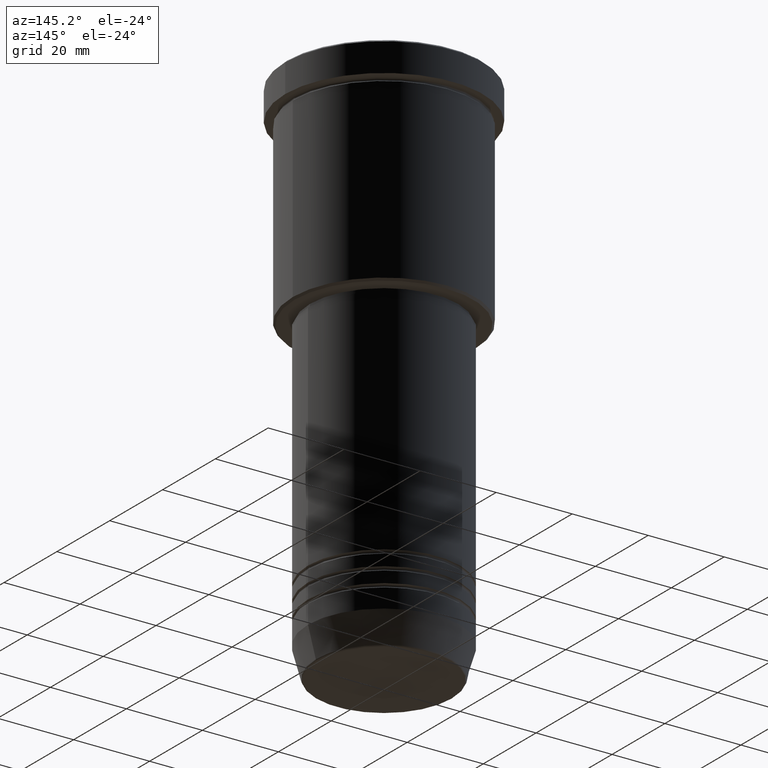
[diagram: clean part render]
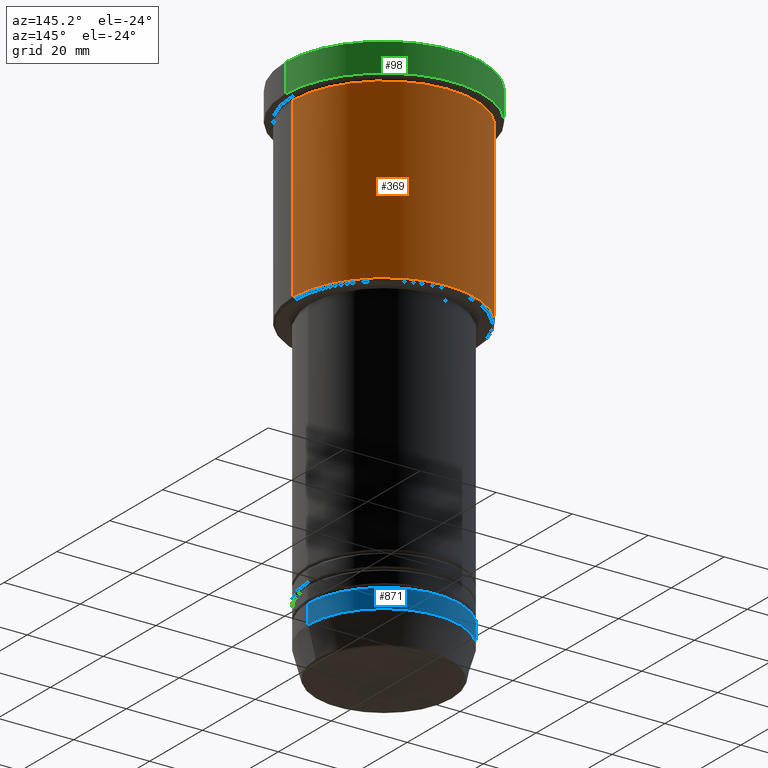
[diagram: same view with three faces highlighted in distinct colors, each labeled with its STEP entity id]
A machine part, auxiliary view with three faces highlighted in distinct colors.
Their STEP definitions:

[orange] entity #369 — the highlighted cylindrical surface (partial cylindrical patch) has radius 24 mm, axis along (-0, -0, 1).
#10 = ORIENTED_EDGE ( 'NONE', *, *, #63, .F. ) ;
#29 = CARTESIAN_POINT ( 'NONE',  ( 24.00000000000000000, 0.000000000000000000, -8.999999999999994671 ) ) ;
#59 = EDGE_LOOP ( 'NONE', ( #241, #410, #10, #599 ) ) ;
#63 = EDGE_CURVE ( 'NONE', #504, #910, #1088, .T. ) ;
#73 = AXIS2_PLACEMENT_3D ( 'NONE', #471, #839, #575 ) ;
#81 = DIRECTION ( 'NONE',  ( 1.000000000000000000, 0.000000000000000000, 0.000000000000000000 ) ) ;
#93 = DIRECTION ( 'NONE',  ( -0.000000000000000000, -0.000000000000000000, 1.000000000000000000 ) ) ;
#96 = DIRECTION ( 'NONE',  ( -0.000000000000000000, -0.000000000000000000, 1.000000000000000000 ) ) ;
#104 = VECTOR ( 'NONE', #153, 1000.000000000000000 ) ;
#128 = CIRCLE ( 'NONE', #73, 24.00000000000000000 ) ;
#153 = DIRECTION ( 'NONE',  ( -0.000000000000000000, -0.000000000000000000, 1.000000000000000000 ) ) ;
#180 = CYLINDRICAL_SURFACE ( 'NONE', #342, 24.00000000000000000 ) ;
#221 = CARTESIAN_POINT ( 'NONE',  ( -24.00000000000000000, 2.939152317953647894E-15, -55.49999999999999289 ) ) ;
#239 = EDGE_CURVE ( 'NONE', #365, #504, #264, .T. ) ;
#241 = ORIENTED_EDGE ( 'NONE', *, *, #485, .T. ) ;
#264 = LINE ( 'NONE', #530, #104 ) ;
#342 = AXIS2_PLACEMENT_3D ( 'NONE', #1097, #96, #81 ) ;
#364 = CARTESIAN_POINT ( 'NONE',  ( 24.00000000000000000, 0.000000000000000000, -55.49999999999999289 ) ) ;
#365 = VERTEX_POINT ( 'NONE', #364 ) ;
#367 = CARTESIAN_POINT ( 'NONE',  ( 0.000000000000000000, 0.000000000000000000, -8.999999999999994671 ) ) ;
#369 = ADVANCED_FACE ( 'NONE', ( #1105 ), #180, .T. ) ;
#410 = ORIENTED_EDGE ( 'NONE', *, *, #759, .T. ) ;
#471 = CARTESIAN_POINT ( 'NONE',  ( 0.000000000000000000, 0.000000000000000000, -55.49999999999999289 ) ) ;
#485 = EDGE_CURVE ( 'NONE', #365, #805, #128, .T. ) ;
#504 = VERTEX_POINT ( 'NONE', #29 ) ;
#530 = CARTESIAN_POINT ( 'NONE',  ( 24.00000000000000000, 0.000000000000000000, 0.000000000000000000 ) ) ;
#575 = DIRECTION ( 'NONE',  ( -1.000000000000000000, 0.000000000000000000, 0.000000000000000000 ) ) ;
#578 = DIRECTION ( 'NONE',  ( -0.000000000000000000, -0.000000000000000000, 1.000000000000000000 ) ) ;
#599 = ORIENTED_EDGE ( 'NONE', *, *, #239, .F. ) ;
#701 = CARTESIAN_POINT ( 'NONE',  ( -24.00000000000000000, 2.939152317953647894E-15, -8.999999999999994671 ) ) ;
#759 = EDGE_CURVE ( 'NONE', #805, #910, #1021, .T. ) ;
#805 = VERTEX_POINT ( 'NONE', #221 ) ;
#825 = VECTOR ( 'NONE', #93, 1000.000000000000000 ) ;
#839 = DIRECTION ( 'NONE',  ( -0.000000000000000000, -0.000000000000000000, 1.000000000000000000 ) ) ;
#910 = VERTEX_POINT ( 'NONE', #701 ) ;
#933 = CARTESIAN_POINT ( 'NONE',  ( -24.00000000000000000, 2.939152317953647894E-15, 0.000000000000000000 ) ) ;
#949 = DIRECTION ( 'NONE',  ( 1.000000000000000000, 0.000000000000000000, 0.000000000000000000 ) ) ;
#1021 = LINE ( 'NONE', #933, #825 ) ;
#1088 = CIRCLE ( 'NONE', #1150, 24.00000000000000000 ) ;
#1097 = CARTESIAN_POINT ( 'NONE',  ( 0.000000000000000000, 0.000000000000000000, 0.000000000000000000 ) ) ;
#1105 = FACE_OUTER_BOUND ( 'NONE', #59, .T. ) ;
#1150 = AXIS2_PLACEMENT_3D ( 'NONE', #367, #578, #949 ) ;

[blue] entity #871 — the highlighted cylindrical surface (partial cylindrical patch) has radius 20 mm, axis along (-0, -0, 1).
#12 = CYLINDRICAL_SURFACE ( 'NONE', #846, 20.00000000000000355 ) ;
#20 = DIRECTION ( 'NONE',  ( -0.000000000000000000, -0.000000000000000000, 1.000000000000000000 ) ) ;
#22 = EDGE_CURVE ( 'NONE', #528, #1064, #637, .T. ) ;
#26 = VECTOR ( 'NONE', #20, 1000.000000000000000 ) ;
#94 = EDGE_LOOP ( 'NONE', ( #669, #331, #301, #95 ) ) ;
#95 = ORIENTED_EDGE ( 'NONE', *, *, #497, .F. ) ;
#100 = FACE_OUTER_BOUND ( 'NONE', #94, .T. ) ;
#116 = CARTESIAN_POINT ( 'NONE',  ( 20.00000000000000355, 0.000000000000000000, 0.000000000000000000 ) ) ;
#120 = VERTEX_POINT ( 'NONE', #690 ) ;
#149 = CIRCLE ( 'NONE', #1090, 20.00000000000000355 ) ;
#171 = VERTEX_POINT ( 'NONE', #954 ) ;
#189 = AXIS2_PLACEMENT_3D ( 'NONE', #822, #1094, #555 ) ;
#255 = CARTESIAN_POINT ( 'NONE',  ( -20.00000000000000000, 2.449293598294706513E-15, -127.0000000000000000 ) ) ;
#301 = ORIENTED_EDGE ( 'NONE', *, *, #22, .F. ) ;
#331 = ORIENTED_EDGE ( 'NONE', *, *, #1170, .T. ) ;
#366 = DIRECTION ( 'NONE',  ( 1.000000000000000000, 0.000000000000000000, 0.000000000000000000 ) ) ;
#385 = DIRECTION ( 'NONE',  ( -0.000000000000000000, -0.000000000000000000, 1.000000000000000000 ) ) ;
#419 = CARTESIAN_POINT ( 'NONE',  ( -20.00000000000000355, 2.449293598294706907E-15, 0.000000000000000000 ) ) ;
#432 = LINE ( 'NONE', #419, #674 ) ;
#467 = CARTESIAN_POINT ( 'NONE',  ( 0.000000000000000000, 0.000000000000000000, -132.0000000000000000 ) ) ;
#497 = EDGE_CURVE ( 'NONE', #120, #528, #647, .T. ) ;
#528 = VERTEX_POINT ( 'NONE', #781 ) ;
#555 = DIRECTION ( 'NONE',  ( 1.000000000000000000, 0.000000000000000000, 0.000000000000000000 ) ) ;
#637 = CIRCLE ( 'NONE', #189, 20.00000000000000000 ) ;
#647 = LINE ( 'NONE', #116, #26 ) ;
#669 = ORIENTED_EDGE ( 'NONE', *, *, #707, .T. ) ;
#674 = VECTOR ( 'NONE', #1151, 1000.000000000000000 ) ;
#690 = CARTESIAN_POINT ( 'NONE',  ( 20.00000000000000355, 0.000000000000000000, -132.0000000000000000 ) ) ;
#707 = EDGE_CURVE ( 'NONE', #120, #171, #149, .T. ) ;
#781 = CARTESIAN_POINT ( 'NONE',  ( 20.00000000000000000, 0.000000000000000000, -127.0000000000000000 ) ) ;
#822 = CARTESIAN_POINT ( 'NONE',  ( 0.000000000000000000, 0.000000000000000000, -127.0000000000000000 ) ) ;
#846 = AXIS2_PLACEMENT_3D ( 'NONE', #1084, #1122, #874 ) ;
#871 = ADVANCED_FACE ( 'NONE', ( #100 ), #12, .T. ) ;
#874 = DIRECTION ( 'NONE',  ( 1.000000000000000000, 0.000000000000000000, 0.000000000000000000 ) ) ;
#954 = CARTESIAN_POINT ( 'NONE',  ( -20.00000000000000355, 2.449293598294706907E-15, -132.0000000000000000 ) ) ;
#1064 = VERTEX_POINT ( 'NONE', #255 ) ;
#1084 = CARTESIAN_POINT ( 'NONE',  ( 0.000000000000000000, 0.000000000000000000, 0.000000000000000000 ) ) ;
#1090 = AXIS2_PLACEMENT_3D ( 'NONE', #467, #385, #366 ) ;
#1094 = DIRECTION ( 'NONE',  ( -0.000000000000000000, -0.000000000000000000, 1.000000000000000000 ) ) ;
#1122 = DIRECTION ( 'NONE',  ( -0.000000000000000000, -0.000000000000000000, 1.000000000000000000 ) ) ;
#1151 = DIRECTION ( 'NONE',  ( -0.000000000000000000, -0.000000000000000000, 1.000000000000000000 ) ) ;
#1170 = EDGE_CURVE ( 'NONE', #171, #1064, #432, .T. ) ;

[green] entity #98 — the highlighted cylindrical surface (partial cylindrical patch) has radius 26 mm, axis along (-0, -0, 1).
#37 = ORIENTED_EDGE ( 'NONE', *, *, #749, .F. ) ;
#38 = EDGE_CURVE ( 'NONE', #470, #511, #867, .T. ) ;
#57 = CARTESIAN_POINT ( 'NONE',  ( 26.00000000000000000, 0.000000000000000000, -7.999999999999992895 ) ) ;
#75 = CARTESIAN_POINT ( 'NONE',  ( 0.000000000000000000, 0.000000000000000000, -0.5000000000000108802 ) ) ;
#98 = ADVANCED_FACE ( 'NONE', ( #684 ), #602, .T. ) ;
#141 = DIRECTION ( 'NONE',  ( -0.000000000000000000, -0.000000000000000000, 1.000000000000000000 ) ) ;
#188 = CARTESIAN_POINT ( 'NONE',  ( -26.00000000000000000, 3.184081677783118191E-15, -0.5000000000000108802 ) ) ;
#192 = DIRECTION ( 'NONE',  ( -0.000000000000000000, -0.000000000000000000, 1.000000000000000000 ) ) ;
#197 = CARTESIAN_POINT ( 'NONE',  ( -26.00000000000000000, 3.184081677783118191E-15, -7.999999999999992895 ) ) ;
#249 = AXIS2_PLACEMENT_3D ( 'NONE', #747, #568, #938 ) ;
#262 = DIRECTION ( 'NONE',  ( 0.000000000000000000, 0.000000000000000000, -1.000000000000000000 ) ) ;
#303 = CARTESIAN_POINT ( 'NONE',  ( 26.00000000000000000, 0.000000000000000000, 0.000000000000000000 ) ) ;
#311 = CARTESIAN_POINT ( 'NONE',  ( 0.000000000000000000, 0.000000000000000000, 0.000000000000000000 ) ) ;
#320 = LINE ( 'NONE', #1054, #463 ) ;
#458 = DIRECTION ( 'NONE',  ( 1.000000000000000000, 0.000000000000000000, 0.000000000000000000 ) ) ;
#459 = CIRCLE ( 'NONE', #249, 26.00000000000000000 ) ;
#463 = VECTOR ( 'NONE', #594, 1000.000000000000000 ) ;
#470 = VERTEX_POINT ( 'NONE', #188 ) ;
#501 = CARTESIAN_POINT ( 'NONE',  ( 26.00000000000000000, 0.000000000000000000, -0.5000000000000108802 ) ) ;
#509 = ORIENTED_EDGE ( 'NONE', *, *, #38, .T. ) ;
#511 = VERTEX_POINT ( 'NONE', #501 ) ;
#531 = EDGE_CURVE ( 'NONE', #714, #470, #320, .T. ) ;
#542 = VECTOR ( 'NONE', #192, 1000.000000000000000 ) ;
#568 = DIRECTION ( 'NONE',  ( -0.000000000000000000, -0.000000000000000000, 1.000000000000000000 ) ) ;
#594 = DIRECTION ( 'NONE',  ( -0.000000000000000000, -0.000000000000000000, 1.000000000000000000 ) ) ;
#602 = CYLINDRICAL_SURFACE ( 'NONE', #790, 26.00000000000000000 ) ;
#684 = FACE_OUTER_BOUND ( 'NONE', #798, .T. ) ;
#714 = VERTEX_POINT ( 'NONE', #197 ) ;
#747 = CARTESIAN_POINT ( 'NONE',  ( 0.000000000000000000, 0.000000000000000000, -7.999999999999992895 ) ) ;
#749 = EDGE_CURVE ( 'NONE', #1116, #511, #1106, .T. ) ;
#757 = EDGE_CURVE ( 'NONE', #1116, #714, #459, .T. ) ;
#790 = AXIS2_PLACEMENT_3D ( 'NONE', #311, #141, #875 ) ;
#798 = EDGE_LOOP ( 'NONE', ( #1020, #836, #509, #37 ) ) ;
#836 = ORIENTED_EDGE ( 'NONE', *, *, #531, .T. ) ;
#867 = CIRCLE ( 'NONE', #1131, 26.00000000000000000 ) ;
#875 = DIRECTION ( 'NONE',  ( 1.000000000000000000, 0.000000000000000000, 0.000000000000000000 ) ) ;
#938 = DIRECTION ( 'NONE',  ( 1.000000000000000000, 0.000000000000000000, 0.000000000000000000 ) ) ;
#1020 = ORIENTED_EDGE ( 'NONE', *, *, #757, .T. ) ;
#1054 = CARTESIAN_POINT ( 'NONE',  ( -26.00000000000000000, 3.184081677783118191E-15, 0.000000000000000000 ) ) ;
#1106 = LINE ( 'NONE', #303, #542 ) ;
#1116 = VERTEX_POINT ( 'NONE', #57 ) ;
#1131 = AXIS2_PLACEMENT_3D ( 'NONE', #75, #262, #458 ) ;